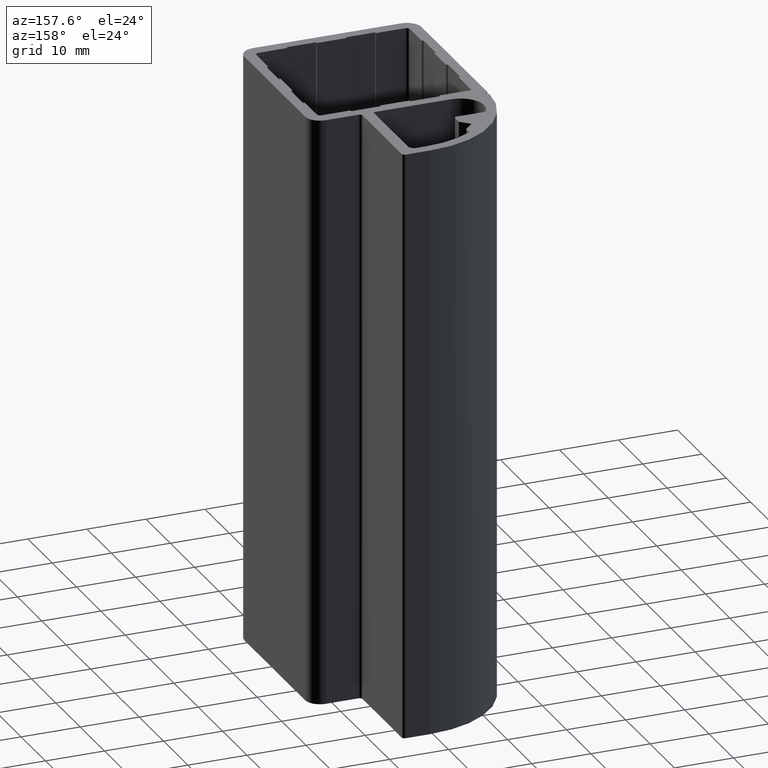
[diagram: clean part render]
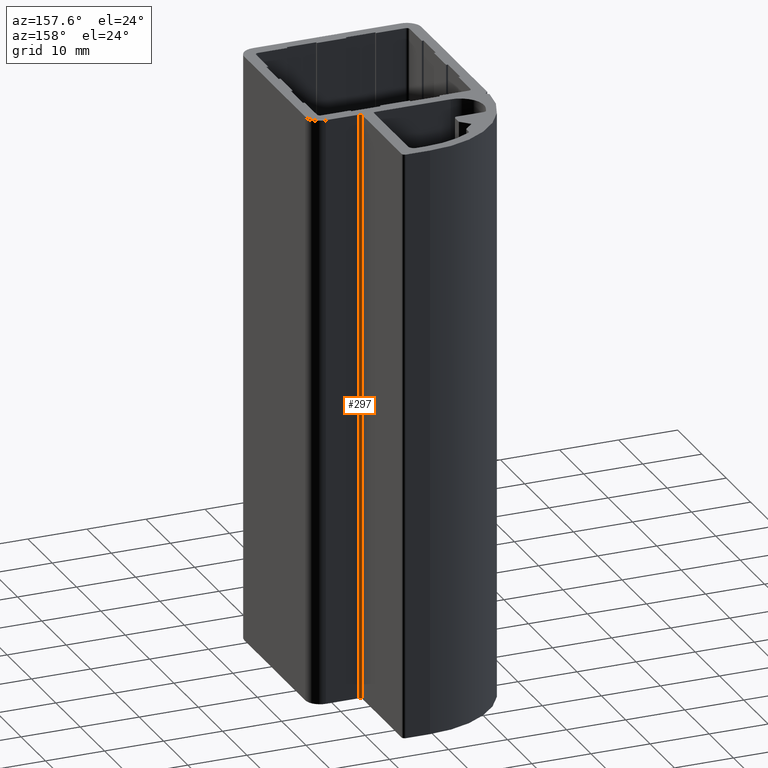
[diagram: same view with one face highlighted and labeled with its STEP entity id]
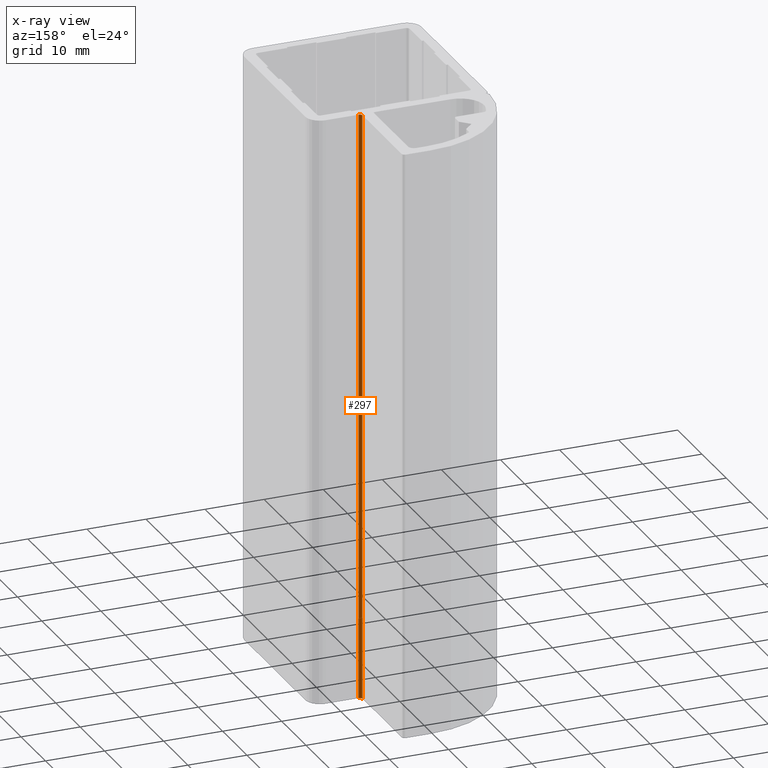
[diagram: x-ray of the same camera — body ghosted, the highlighted face saturated]
A machine part, auxiliary view. The second image highlights one B-rep face of the part: STEP entity #297.
The next image is the same camera in x-ray: the body ghosted, the highlighted face saturated — about 0% of this face is hidden behind the body in this view.
In plain terms, the highlighted cylindrical surface (edge-blend (fillet) strip) has radius 0.5 mm, axis along (0, 0, -1).
Its self-contained STEP definition (entity closure, byte-faithful):
#240=CARTESIAN_POINT('',(6.999999999987267,30.000000000139721,0.0));
#241=VERTEX_POINT('',#240);
#248=CARTESIAN_POINT('',(6.999999999987267,30.000000000139721,100.0));
#249=VERTEX_POINT('',#248);
#250=CARTESIAN_POINT('',(6.999999999987267,30.000000000139721,100.0));
#251=DIRECTION('',(0.0,0.0,-1.0));
#252=VECTOR('',#251,100.0);
#253=LINE('',#250,#252);
#254=EDGE_CURVE('',#249,#241,#253,.T.);
#265=CARTESIAN_POINT('',(6.999999999987267,30.500000000139721,100.0));
#266=DIRECTION('',(0.0,0.0,-1.0));
#267=DIRECTION('',(1.136256E-013,-1.0,0.0));
#268=AXIS2_PLACEMENT_3D('',#265,#266,#267);
#269=CYLINDRICAL_SURFACE('',#268,0.500000000000000);
#270=ORIENTED_EDGE('',*,*,#254,.T.);
#271=CARTESIAN_POINT('',(6.499999999987267,30.500000000139721,0.0));
#272=VERTEX_POINT('',#271);
#273=CARTESIAN_POINT('',(6.999999999987267,30.500000000139721,0.0));
#274=DIRECTION('',(0.0,0.0,-1.0));
#275=DIRECTION('',(-1.0,0.0,0.0));
#276=AXIS2_PLACEMENT_3D('',#273,#274,#275);
#277=CIRCLE('',#276,0.500000000000000);
#278=EDGE_CURVE('',#241,#272,#277,.T.);
#279=ORIENTED_EDGE('',*,*,#278,.T.);
#280=CARTESIAN_POINT('',(6.499999999987267,30.500000000139721,100.0));
#281=VERTEX_POINT('',#280);
#282=CARTESIAN_POINT('',(6.499999999987267,30.500000000139721,100.0));
#283=DIRECTION('',(0.0,0.0,-1.0));
#284=VECTOR('',#283,100.0);
#285=LINE('',#282,#284);
#286=EDGE_CURVE('',#281,#272,#285,.T.);
#287=ORIENTED_EDGE('',*,*,#286,.F.);
#288=CARTESIAN_POINT('',(6.999999999987267,30.500000000139721,100.0));
#289=DIRECTION('',(0.0,0.0,-1.0));
#290=DIRECTION('',(-1.0,0.0,0.0));
#291=AXIS2_PLACEMENT_3D('',#288,#289,#290);
#292=CIRCLE('',#291,0.500000000000000);
#293=EDGE_CURVE('',#249,#281,#292,.T.);
#294=ORIENTED_EDGE('',*,*,#293,.F.);
#295=EDGE_LOOP('',(#270,#279,#287,#294));
#296=FACE_OUTER_BOUND('',#295,.T.);
#297=ADVANCED_FACE('',(#296),#269,.F.);